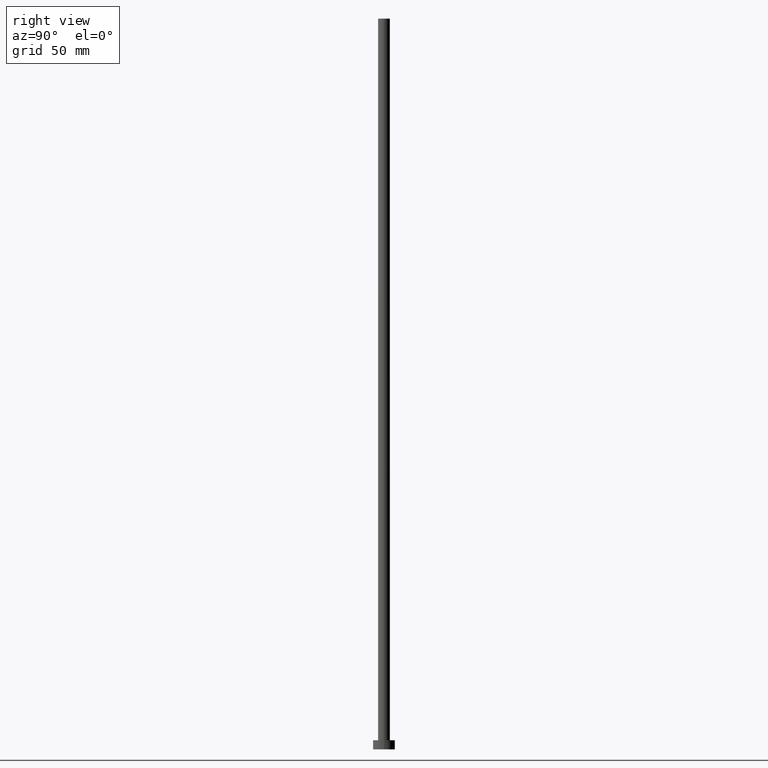
[diagram: clean part render]
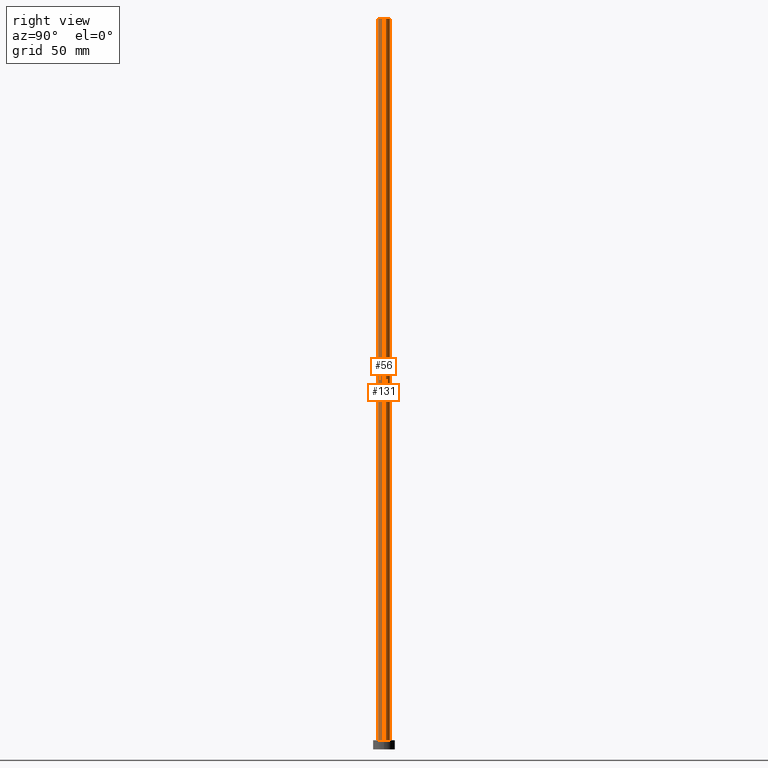
[diagram: same view with one multi-face feature highlighted, each face labeled with its STEP entity id]
A machine part, right view. The highlighted faces form ONE feature: a constant-radius fillet chain: 2 tangent blend faces with common blend radius 3.25 mm. The faces share edges in the B-rep.
Their STEP definitions:
[1] entity #56 (Cylinder):
#5 = CIRCLE ( 'NONE', #122, 3.250000000000000444 ) ;
#8 = VERTEX_POINT ( 'NONE', #75 ) ;
#13 = ORIENTED_EDGE ( 'NONE', *, *, #141, .F. ) ;
#14 = DIRECTION ( 'NONE',  ( 0.000000000000000000, 0.000000000000000000, 1.000000000000000000 ) ) ;
#28 = VECTOR ( 'NONE', #95, 1000.000000000000000 ) ;
#33 = CYLINDRICAL_SURFACE ( 'NONE', #45, 3.250000000000000444 ) ;
#42 = CIRCLE ( 'NONE', #178, 3.250000000000000444 ) ;
#45 = AXIS2_PLACEMENT_3D ( 'NONE', #218, #113, #240 ) ;
#49 = VERTEX_POINT ( 'NONE', #143 ) ;
#51 = VERTEX_POINT ( 'NONE', #224 ) ;
#55 = VERTEX_POINT ( 'NONE', #128 ) ;
#56 = ADVANCED_FACE ( 'NONE', ( #163 ), #33, .T. ) ;
#61 = CARTESIAN_POINT ( 'NONE',  ( 0.000000000000000000, 0.000000000000000000, 400.0000000000000000 ) ) ;
#75 = CARTESIAN_POINT ( 'NONE',  ( -3.250000000000000444, 0.000000000000000000, 400.0000000000000000 ) ) ;
#83 = ORIENTED_EDGE ( 'NONE', *, *, #104, .T. ) ;
#87 = ORIENTED_EDGE ( 'NONE', *, *, #153, .F. ) ;
#95 = DIRECTION ( 'NONE',  ( -0.000000000000000000, -0.000000000000000000, -1.000000000000000000 ) ) ;
#104 = EDGE_CURVE ( 'NONE', #8, #55, #176, .T. ) ;
#113 = DIRECTION ( 'NONE',  ( -0.000000000000000000, -0.000000000000000000, -1.000000000000000000 ) ) ;
#118 = LINE ( 'NONE', #135, #28 ) ;
#122 = AXIS2_PLACEMENT_3D ( 'NONE', #173, #152, #130 ) ;
#128 = CARTESIAN_POINT ( 'NONE',  ( -3.250000000000000444, 0.000000000000000000, 5.000000000000000000 ) ) ;
#130 = DIRECTION ( 'NONE',  ( 1.000000000000000000, 0.000000000000000000, 0.000000000000000000 ) ) ;
#135 = CARTESIAN_POINT ( 'NONE',  ( 3.250000000000000444, 3.980102097228897245E-16, 400.0000000000000000 ) ) ;
#141 = EDGE_CURVE ( 'NONE', #8, #49, #42, .T. ) ;
#143 = CARTESIAN_POINT ( 'NONE',  ( 3.250000000000000444, 3.980102097228897245E-16, 400.0000000000000000 ) ) ;
#148 = ORIENTED_EDGE ( 'NONE', *, *, #167, .T. ) ;
#152 = DIRECTION ( 'NONE',  ( 0.000000000000000000, 0.000000000000000000, 1.000000000000000000 ) ) ;
#153 = EDGE_CURVE ( 'NONE', #49, #51, #118, .T. ) ;
#155 = CARTESIAN_POINT ( 'NONE',  ( -3.250000000000000444, 0.000000000000000000, 400.0000000000000000 ) ) ;
#157 = DIRECTION ( 'NONE',  ( -0.000000000000000000, -0.000000000000000000, -1.000000000000000000 ) ) ;
#162 = VECTOR ( 'NONE', #157, 1000.000000000000000 ) ;
#163 = FACE_OUTER_BOUND ( 'NONE', #171, .T. ) ;
#167 = EDGE_CURVE ( 'NONE', #55, #51, #5, .T. ) ;
#171 = EDGE_LOOP ( 'NONE', ( #87, #13, #83, #148 ) ) ;
#173 = CARTESIAN_POINT ( 'NONE',  ( 0.000000000000000000, 0.000000000000000000, 5.000000000000000000 ) ) ;
#176 = LINE ( 'NONE', #155, #162 ) ;
#178 = AXIS2_PLACEMENT_3D ( 'NONE', #61, #14, #255 ) ;
#218 = CARTESIAN_POINT ( 'NONE',  ( 0.000000000000000000, 0.000000000000000000, 400.0000000000000000 ) ) ;
#224 = CARTESIAN_POINT ( 'NONE',  ( 3.250000000000000444, 3.980102097228897245E-16, 5.000000000000000000 ) ) ;
#240 = DIRECTION ( 'NONE',  ( -1.000000000000000000, 0.000000000000000000, 0.000000000000000000 ) ) ;
#255 = DIRECTION ( 'NONE',  ( 1.000000000000000000, 0.000000000000000000, 0.000000000000000000 ) ) ;
[2] entity #131 (Cylinder):
#8 = VERTEX_POINT ( 'NONE', #75 ) ;
#10 = ORIENTED_EDGE ( 'NONE', *, *, #252, .F. ) ;
#28 = VECTOR ( 'NONE', #95, 1000.000000000000000 ) ;
#30 = EDGE_LOOP ( 'NONE', ( #10, #166, #187, #92 ) ) ;
#34 = DIRECTION ( 'NONE',  ( -0.000000000000000000, -0.000000000000000000, -1.000000000000000000 ) ) ;
#39 = DIRECTION ( 'NONE',  ( 0.000000000000000000, 0.000000000000000000, 1.000000000000000000 ) ) ;
#49 = VERTEX_POINT ( 'NONE', #143 ) ;
#51 = VERTEX_POINT ( 'NONE', #224 ) ;
#55 = VERTEX_POINT ( 'NONE', #128 ) ;
#75 = CARTESIAN_POINT ( 'NONE',  ( -3.250000000000000444, 0.000000000000000000, 400.0000000000000000 ) ) ;
#76 = DIRECTION ( 'NONE',  ( 0.000000000000000000, 0.000000000000000000, 1.000000000000000000 ) ) ;
#78 = CYLINDRICAL_SURFACE ( 'NONE', #195, 3.250000000000000444 ) ;
#79 = FACE_OUTER_BOUND ( 'NONE', #30, .T. ) ;
#92 = ORIENTED_EDGE ( 'NONE', *, *, #104, .F. ) ;
#95 = DIRECTION ( 'NONE',  ( -0.000000000000000000, -0.000000000000000000, -1.000000000000000000 ) ) ;
#99 = CARTESIAN_POINT ( 'NONE',  ( 0.000000000000000000, 0.000000000000000000, 5.000000000000000000 ) ) ;
#104 = EDGE_CURVE ( 'NONE', #8, #55, #176, .T. ) ;
#115 = DIRECTION ( 'NONE',  ( 1.000000000000000000, 0.000000000000000000, 0.000000000000000000 ) ) ;
#118 = LINE ( 'NONE', #135, #28 ) ;
#128 = CARTESIAN_POINT ( 'NONE',  ( -3.250000000000000444, 0.000000000000000000, 5.000000000000000000 ) ) ;
#131 = ADVANCED_FACE ( 'NONE', ( #79 ), #78, .T. ) ;
#133 = EDGE_CURVE ( 'NONE', #51, #55, #225, .T. ) ;
#135 = CARTESIAN_POINT ( 'NONE',  ( 3.250000000000000444, 3.980102097228897245E-16, 400.0000000000000000 ) ) ;
#143 = CARTESIAN_POINT ( 'NONE',  ( 3.250000000000000444, 3.980102097228897245E-16, 400.0000000000000000 ) ) ;
#153 = EDGE_CURVE ( 'NONE', #49, #51, #118, .T. ) ;
#155 = CARTESIAN_POINT ( 'NONE',  ( -3.250000000000000444, 0.000000000000000000, 400.0000000000000000 ) ) ;
#157 = DIRECTION ( 'NONE',  ( -0.000000000000000000, -0.000000000000000000, -1.000000000000000000 ) ) ;
#162 = VECTOR ( 'NONE', #157, 1000.000000000000000 ) ;
#166 = ORIENTED_EDGE ( 'NONE', *, *, #153, .T. ) ;
#174 = DIRECTION ( 'NONE',  ( -1.000000000000000000, 0.000000000000000000, 0.000000000000000000 ) ) ;
#176 = LINE ( 'NONE', #155, #162 ) ;
#187 = ORIENTED_EDGE ( 'NONE', *, *, #133, .T. ) ;
#193 = AXIS2_PLACEMENT_3D ( 'NONE', #212, #39, #194 ) ;
#194 = DIRECTION ( 'NONE',  ( 1.000000000000000000, 0.000000000000000000, 0.000000000000000000 ) ) ;
#195 = AXIS2_PLACEMENT_3D ( 'NONE', #209, #34, #174 ) ;
#209 = CARTESIAN_POINT ( 'NONE',  ( 0.000000000000000000, 0.000000000000000000, 400.0000000000000000 ) ) ;
#212 = CARTESIAN_POINT ( 'NONE',  ( 0.000000000000000000, 0.000000000000000000, 400.0000000000000000 ) ) ;
#224 = CARTESIAN_POINT ( 'NONE',  ( 3.250000000000000444, 3.980102097228897245E-16, 5.000000000000000000 ) ) ;
#225 = CIRCLE ( 'NONE', #226, 3.250000000000000444 ) ;
#226 = AXIS2_PLACEMENT_3D ( 'NONE', #99, #76, #115 ) ;
#239 = CIRCLE ( 'NONE', #193, 3.250000000000000444 ) ;
#252 = EDGE_CURVE ( 'NONE', #49, #8, #239, .T. ) ;